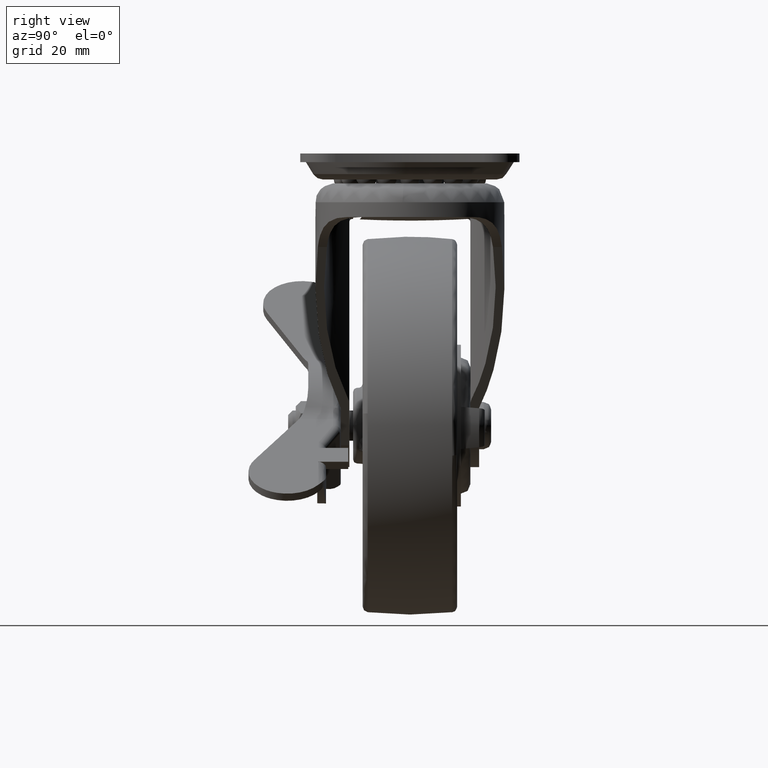
[diagram: clean part render]
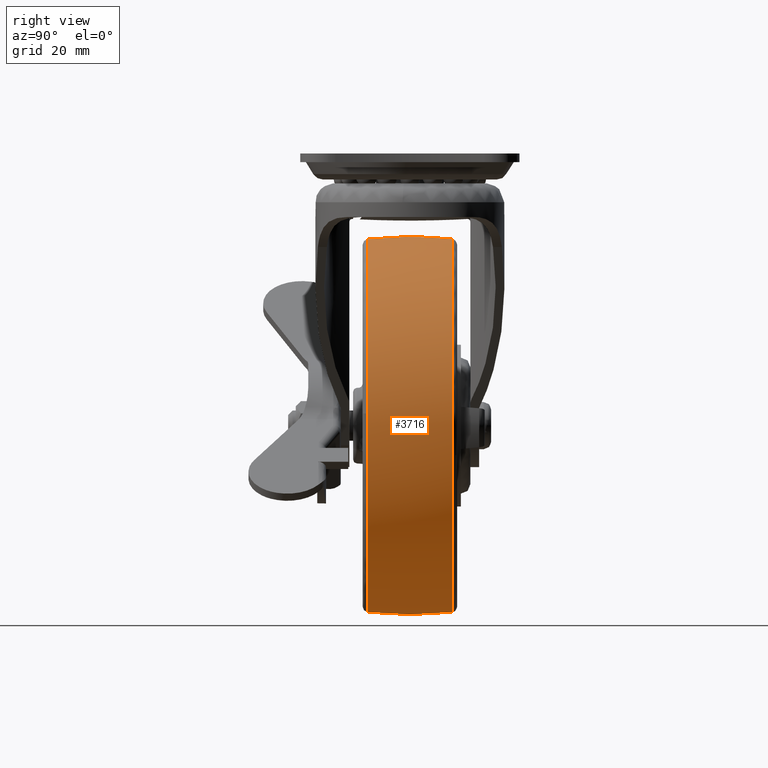
[diagram: same view with one face highlighted and labeled with its STEP entity id]
A machine part, right view. The second image highlights one B-rep face of the part: STEP entity #3716.
In plain terms, the highlighted face is a freeform B-spline surface patch.
Its self-contained STEP definition (entity closure, byte-faithful):
#2634=CARTESIAN_POINT('',(13.453441757027891,-11.167512699821900,-47.506233928361368));
#2635=VERTEX_POINT('',#2634);
#2646=CARTESIAN_POINT('',(49.125186013617871,-11.167497970164780,4.955323172465669));
#2647=VERTEX_POINT('',#2646);
#2648=CARTESIAN_POINT('',(13.453441757027891,-11.167512699821900,-47.506233928361368));
#2649=CARTESIAN_POINT('',(17.251602295345350,-11.167512334913191,-46.431694933010121));
#2650=CARTESIAN_POINT('',(23.002957873926420,-11.167511574656460,-44.025991834927702));
#2651=CARTESIAN_POINT('',(30.729831183755550,-11.167510053415681,-38.920189072931869));
#2652=CARTESIAN_POINT('',(35.830599716736607,-11.167508694089790,-34.218499783919107));
#2653=CARTESIAN_POINT('',(40.088794242363143,-11.167507213981290,-28.998946743348991));
#2654=CARTESIAN_POINT('',(43.157088384774283,-11.167505881164910,-24.239631894673259));
#2655=CARTESIAN_POINT('',(46.010614425336563,-11.167504246532991,-18.332311750766291));
#2656=CARTESIAN_POINT('',(47.870737432981819,-11.167502678681201,-12.598592711098281));
#2657=CARTESIAN_POINT('',(49.405898412243808,-11.167500530241190,-4.663320679447160));
#2658=CARTESIAN_POINT('',(49.531482162625068,-11.167499033220190,0.938862021813099));
#2659=CARTESIAN_POINT('',(49.125186013617871,-11.167497970164780,4.955323172465669));
#2660=B_SPLINE_CURVE_WITH_KNOTS('',3,(#2648,#2649,#2650,#2651,#2652,#2653,#2654,#2655,#2656,#2657,#2658,#2659),.UNSPECIFIED.,.F.,.U.,(4,1,1,1,1,1,1,1,1,4),(0.000000110173062,11.841343672996789,18.569428691790701,27.719579693970179,32.563831003092503,38.753513813613303,44.674232991005908,52.209691314448577,56.784792959455089,68.895259463429525),.UNSPECIFIED.);
#2661=EDGE_CURVE('',#2635,#2647,#2660,.T.);
#2774=CARTESIAN_POINT('',(0.0,-11.167485028069921,49.374496014473692));
#2775=VERTEX_POINT('',#2774);
#2776=CARTESIAN_POINT('',(49.125186013617871,-11.167497970164780,4.955323172465669));
#2777=CARTESIAN_POINT('',(48.784163457511667,-11.167496983687730,8.341057513873032));
#2778=CARTESIAN_POINT('',(47.609514411902410,-11.167495329782810,14.017502433133821));
#2779=CARTESIAN_POINT('',(44.768709009004091,-11.167493252041581,21.148615927221979));
#2780=CARTESIAN_POINT('',(41.266785843042811,-11.167491420539699,27.434599571834131));
#2781=CARTESIAN_POINT('',(36.528187532415423,-11.167489622113459,33.607063166958497));
#2782=CARTESIAN_POINT('',(30.630748600957780,-11.167488059484340,38.970235956840753));
#2783=CARTESIAN_POINT('',(23.922482200627339,-11.167486762666540,43.421105126464333));
#2784=CARTESIAN_POINT('',(16.677420083142749,-11.167485792545859,46.750702521312640));
#2785=CARTESIAN_POINT('',(8.317954870245801,-11.167485163733520,48.908877911124733));
#2786=CARTESIAN_POINT('',(2.741169881524872,-11.167485028007050,49.374712794983523));
#2787=CARTESIAN_POINT('',(0.0,-11.167485028069921,49.374496014473692));
#2788=B_SPLINE_CURVE_WITH_KNOTS('',3,(#2776,#2777,#2778,#2779,#2780,#2781,#2782,#2783,#2784,#2785,#2786,#2787),.UNSPECIFIED.,.F.,.U.,(4,1,1,1,1,1,1,1,1,4),(0.000000124632749,10.208487641787420,17.297712899460588,22.969122856209491,31.759770960216489,40.550307382696133,46.788896930069427,55.863117463162922,64.370196630409822,72.593685615601487),.UNSPECIFIED.);
#2789=EDGE_CURVE('',#2647,#2775,#2788,.T.);
#2791=CARTESIAN_POINT('',(-49.044247291696259,-11.167491605382230,5.700981821739983));
#2792=VERTEX_POINT('',#2791);
#2808=CARTESIAN_POINT('',(0.0,-11.167512887776240,-49.374460883661492));
#2809=VERTEX_POINT('',#2808);
#2810=CARTESIAN_POINT('',(-49.044247291696259,-11.167491605382230,5.700981821739983));
#2811=CARTESIAN_POINT('',(-49.458077728506673,-11.167492291939469,2.146887266101055));
#2812=CARTESIAN_POINT('',(-49.496762012035390,-11.167493506793260,-3.524405453981119));
#2813=CARTESIAN_POINT('',(-48.341804689236888,-11.167495229855270,-10.490823225336451));
#2814=CARTESIAN_POINT('',(-46.896181665812527,-11.167496634503090,-15.720984203590470));
#2815=CARTESIAN_POINT('',(-44.962731448887432,-11.167498074252650,-20.679608257891150));
#2816=CARTESIAN_POINT('',(-42.405038774803437,-11.167499597648860,-25.470465301523159));
#2817=CARTESIAN_POINT('',(-39.298727500544288,-11.167501181291250,-30.052319751800741));
#2818=CARTESIAN_POINT('',(-35.780876975653342,-11.167502748433639,-34.191142187700898));
#2819=CARTESIAN_POINT('',(-31.481043515662218,-11.167504433020740,-38.178552660360268));
#2820=CARTESIAN_POINT('',(-25.786724858823000,-11.167506425415249,-42.352389955149583));
#2821=CARTESIAN_POINT('',(-19.001775203722850,-11.167508478309159,-45.835743873478279));
#2822=CARTESIAN_POINT('',(-9.974811230605136,-11.167510819052760,-48.658206164189622));
#2823=CARTESIAN_POINT('',(-3.794968822983810,-11.167512159630050,-49.375297316795539));
#2824=CARTESIAN_POINT('',(0.0,-11.167512887776240,-49.374460883661492));
#2825=B_SPLINE_CURVE_WITH_KNOTS('',3,(#2810,#2811,#2812,#2813,#2814,#2815,#2816,#2817,#2818,#2819,#2820,#2821,#2822,#2823,#2824),.UNSPECIFIED.,.F.,.U.,(4,1,1,1,1,1,1,1,1,1,1,1,4),(0.000000151294060,10.734137076207990,16.914423557023870,21.143058370067010,26.998062360269639,32.853114766262152,37.407028888038553,43.587134058529983,49.116872722965930,54.971938350166077,64.730278424790527,71.886436113233216,83.271108672757563),.UNSPECIFIED.);
#2826=EDGE_CURVE('',#2792,#2809,#2825,.T.);
#2828=CARTESIAN_POINT('',(0.0,-11.167512887776240,-49.374460883661492));
#2829=CARTESIAN_POINT('',(4.542044248176945,-11.167512887886730,-49.375559167782448));
#2830=CARTESIAN_POINT('',(9.083525785626250,-11.167512824416891,-48.744682164057153));
#2831=CARTESIAN_POINT('',(13.453441757027891,-11.167512699821900,-47.506233928361368));
#2832=B_SPLINE_CURVE_WITH_KNOTS('',3,(#2828,#2829,#2830,#2831),.UNSPECIFIED.,.F.,.U.,(4,4),(2.988475E-009,13.625777978098510),.UNSPECIFIED.);
#2833=EDGE_CURVE('',#2809,#2635,#2832,.T.);
#2862=CARTESIAN_POINT('',(48.985143675084117,11.167491662923680,-6.188246753628677));
#2863=VERTEX_POINT('',#2862);
#2864=CARTESIAN_POINT('',(0.0,11.167464544217721,49.374497440264150));
#2865=VERTEX_POINT('',#2864);
#2866=CARTESIAN_POINT('',(48.985143675084117,11.167491662923680,-6.188246753628677));
#2867=CARTESIAN_POINT('',(49.285991338032687,11.167490504293839,-3.807772200714678));
#2868=CARTESIAN_POINT('',(49.499191538256682,11.167488537296981,0.232721676372286));
#2869=CARTESIAN_POINT('',(49.095362322208452,11.167485725701960,6.006190342601487));
#2870=CARTESIAN_POINT('',(48.045472835186487,11.167482790532150,12.031683599481379));
#2871=CARTESIAN_POINT('',(46.052389022519613,11.167479741584330,18.288262469416651));
#2872=CARTESIAN_POINT('',(42.887919229904732,11.167476581622060,24.769622045764610));
#2873=CARTESIAN_POINT('',(38.811557289329187,11.167473611920780,30.857704499974499));
#2874=CARTESIAN_POINT('',(32.997202147591778,11.167470559491980,37.110911247411650));
#2875=CARTESIAN_POINT('',(26.384990102628169,11.167468172749000,41.994706144968617));
#2876=CARTESIAN_POINT('',(19.188846077461339,11.167466366636740,45.684364335999483));
#2877=CARTESIAN_POINT('',(10.797022654573411,11.167464964606010,48.540815791186169));
#2878=CARTESIAN_POINT('',(4.035464674059152,11.167464549178391,49.375418524881717));
#2879=CARTESIAN_POINT('',(0.0,11.167464544217721,49.374497440264150));
#2880=B_SPLINE_CURVE_WITH_KNOTS('',3,(#2866,#2867,#2868,#2869,#2870,#2871,#2872,#2873,#2874,#2875,#2876,#2877,#2878,#2879),.UNSPECIFIED.,.F.,.U.,(4,1,1,1,1,1,1,1,1,1,1,4),(0.000000161544548,7.198220635472723,12.106208065130019,17.341331018806361,25.521233576839951,31.737998721129259,38.936324960287152,47.443238618966113,57.259137634664441,63.475879286457477,71.655808637872894,83.761983492843299),.UNSPECIFIED.);
#2881=EDGE_CURVE('',#2863,#2865,#2880,.T.);
#2986=CARTESIAN_POINT('',(0.0,11.167512474098420,-49.374459177890202));
#2987=VERTEX_POINT('',#2986);
#2988=CARTESIAN_POINT('',(0.0,11.167512474098420,-49.374459177890202));
#2989=CARTESIAN_POINT('',(2.694302779831196,11.167512478846220,-49.374667157061097));
#2990=CARTESIAN_POINT('',(7.804117390838606,11.167512284660759,-48.955117976370879));
#2991=CARTESIAN_POINT('',(15.048285903121490,11.167511450266611,-47.204806535520632));
#2992=CARTESIAN_POINT('',(21.186812130551850,11.167510270889810,-44.745441244254813));
#2993=CARTESIAN_POINT('',(26.796666424656902,11.167508769207551,-41.621834602514802));
#2994=CARTESIAN_POINT('',(31.379007551464181,11.167507152906010,-38.265001301578600));
#2995=CARTESIAN_POINT('',(35.470058315795448,11.167505323315231,-34.469102078670971));
#2996=CARTESIAN_POINT('',(39.770831797523883,11.167502964260420,-29.578183755088290));
#2997=CARTESIAN_POINT('',(43.204414725912898,11.167500387495300,-24.240402233809789));
#2998=CARTESIAN_POINT('',(45.859206784237422,11.167497615190440,-18.501264993219490));
#2999=CARTESIAN_POINT('',(47.768601298721762,11.167494984718900,-13.057918947683110));
#3000=CARTESIAN_POINT('',(48.659294006681883,11.167492911142240,-8.769169834474118));
#3001=CARTESIAN_POINT('',(48.985143675084117,11.167491662923680,-6.188246753628677));
#3002=B_SPLINE_CURVE_WITH_KNOTS('',3,(#2988,#2989,#2990,#2991,#2992,#2993,#2994,#2995,#2996,#2997,#2998,#2999,#3000,#3001),.UNSPECIFIED.,.F.,.U.,(4,1,1,1,1,1,1,1,1,1,1,4),(0.000000122478170,8.082877200536210,15.329693806470891,22.297743180416720,27.872183690882611,34.561581738805778,39.299745106698339,44.595426592966312,54.072015604197773,58.252864015636561,63.548553339114427,71.352759601323157),.UNSPECIFIED.);
#3003=EDGE_CURVE('',#2987,#2863,#3002,.T.);
#3005=CARTESIAN_POINT('',(-49.044248660978610,11.167471188608850,5.700982325196638));
#3006=VERTEX_POINT('',#3005);
#3007=CARTESIAN_POINT('',(-49.044248660978610,11.167471188608850,5.700982325196638));
#3008=CARTESIAN_POINT('',(-49.257091677739822,11.167471874839331,3.870082615775127));
#3009=CARTESIAN_POINT('',(-49.529441953683872,11.167473676941780,-0.682812877056471));
#3010=CARTESIAN_POINT('',(-48.999741407831742,11.167476685505990,-7.407172496852190));
#3011=CARTESIAN_POINT('',(-47.459892067518638,11.167480047535321,-14.077438739656960));
#3012=CARTESIAN_POINT('',(-45.549862911862817,11.167482932575400,-19.277174561263429));
#3013=CARTESIAN_POINT('',(-43.026635499911080,11.167486033011560,-24.446058197796400));
#3014=CARTESIAN_POINT('',(-39.685896956387687,11.167489458673989,-29.664849359772440));
#3015=CARTESIAN_POINT('',(-35.198970883585631,11.167493292456260,-34.839132627197422));
#3016=CARTESIAN_POINT('',(-29.978133395342439,11.167497155956969,-39.430957159841348));
#3017=CARTESIAN_POINT('',(-24.622500503731299,11.167500626597780,-42.963082081781629));
#3018=CARTESIAN_POINT('',(-18.563521910020391,11.167504109998720,-45.899404184938277));
#3019=CARTESIAN_POINT('',(-13.099455537449330,11.167506908450100,-47.727189473034663));
#3020=CARTESIAN_POINT('',(-6.722304843393345,11.167509834863990,-49.047949588140128));
#3021=CARTESIAN_POINT('',(-2.602205476762469,11.167511505363230,-49.374626168149952));
#3022=CARTESIAN_POINT('',(0.0,11.167512474098420,-49.374459177890202));
#3023=B_SPLINE_CURVE_WITH_KNOTS('',3,(#3007,#3008,#3009,#3010,#3011,#3012,#3013,#3014,#3015,#3016,#3017,#3018,#3019,#3020,#3021,#3022),.UNSPECIFIED.,.F.,.U.,(4,1,1,1,1,1,1,1,1,1,1,1,1,4),(0.000000151436524,5.529709133887579,13.661627445095050,20.167219625082861,26.022229247785230,30.250843011908159,37.407028669805342,44.562959753183407,50.743319380711249,58.224721062799219,63.754447409344863,70.910600443835733,75.464511995974945,83.271108186775308),.UNSPECIFIED.);
#3024=EDGE_CURVE('',#3006,#2987,#3023,.T.);
#3640=CARTESIAN_POINT('',(-48.912141797698162,-12.293386680871293,5.685645083880570));
#3641=CARTESIAN_POINT('',(-49.665582081654208,-6.170093837611956,5.773226241318850));
#3642=CARTESIAN_POINT('',(-49.665582081654193,0.0,5.773226241318849));
#3643=CARTESIAN_POINT('',(-49.665582081654186,6.170090758022482,5.773226241318846));
#3644=CARTESIAN_POINT('',(-48.912142546953007,12.293380591592436,5.685645170975202));
#3645=CARTESIAN_POINT('',(-49.241486505969760,-12.293386680871292,2.852369322545358));
#3646=CARTESIAN_POINT('',(-49.999999999999993,-6.170093837611954,2.896306836182978));
#3647=CARTESIAN_POINT('',(-50.0,0.0,2.896306836182978));
#3648=CARTESIAN_POINT('',(-50.0,6.170090758022481,2.896306836182979));
#3649=CARTESIAN_POINT('',(-49.241487260269615,12.293380591592436,2.852369366238793));
#3650=CARTESIAN_POINT('',(-49.241486505969753,-12.293386680871301,0.000015999999901));
#3651=CARTESIAN_POINT('',(-50.000000000000007,-6.170093837611955,0.000015999999901));
#3652=CARTESIAN_POINT('',(-50.0,0.0,0.000015999999901));
#3653=CARTESIAN_POINT('',(-50.0,6.170090758022482,0.000015999999901));
#3654=CARTESIAN_POINT('',(-49.241487260269629,12.293380591592440,0.000015999999901));
#3655=CARTESIAN_POINT('',(-49.241486505969753,-12.293386680871295,-49.241470505969865));
#3656=CARTESIAN_POINT('',(-49.999999999999993,-6.170093837611955,-49.999984000000111));
#3657=CARTESIAN_POINT('',(-50.0,0.0,-49.999984000000111));
#3658=CARTESIAN_POINT('',(-50.000000000000014,6.170090758022482,-49.999984000000111));
#3659=CARTESIAN_POINT('',(-49.241487260269629,12.293380591592436,-49.241471260269734));
#3660=CARTESIAN_POINT('',(0.0,-12.293386680871301,-49.241470505969872));
#3661=CARTESIAN_POINT('',(0.0,-6.170093837611955,-49.999984000000119));
#3662=CARTESIAN_POINT('',(0.0,0.0,-49.999984000000097));
#3663=CARTESIAN_POINT('',(0.0,6.170090758022482,-49.999984000000111));
#3664=CARTESIAN_POINT('',(0.0,12.293380591592440,-49.241471260269726));
#3665=CARTESIAN_POINT('',(49.241486505969753,-12.293386680871295,-49.241470505969865));
#3666=CARTESIAN_POINT('',(49.999999999999993,-6.170093837611955,-49.999984000000111));
#3667=CARTESIAN_POINT('',(50.0,0.0,-49.999984000000111));
#3668=CARTESIAN_POINT('',(50.000000000000014,6.170090758022482,-49.999984000000111));
#3669=CARTESIAN_POINT('',(49.241487260269629,12.293380591592436,-49.241471260269734));
#3670=CARTESIAN_POINT('',(49.241486505969753,-12.293386680871301,0.000015999999901));
#3671=CARTESIAN_POINT('',(50.000000000000007,-6.170093837611955,0.000015999999901));
#3672=CARTESIAN_POINT('',(50.0,0.0,0.000015999999901));
#3673=CARTESIAN_POINT('',(50.0,6.170090758022482,0.000015999999901));
#3674=CARTESIAN_POINT('',(49.241487260269629,12.293380591592440,0.000015999999901));
#3675=CARTESIAN_POINT('',(49.241486505969753,-12.293386680871295,49.241502505969663));
#3676=CARTESIAN_POINT('',(49.999999999999993,-6.170093837611955,50.000015999999910));
#3677=CARTESIAN_POINT('',(50.0,0.0,50.000015999999910));
#3678=CARTESIAN_POINT('',(50.000000000000014,6.170090758022482,50.000015999999910));
#3679=CARTESIAN_POINT('',(49.241487260269629,12.293380591592436,49.241503260269532));
#3680=CARTESIAN_POINT('',(0.0,-12.293386680871301,49.241502505969656));
#3681=CARTESIAN_POINT('',(0.0,-6.170093837611955,50.000015999999903));
#3682=CARTESIAN_POINT('',(0.0,0.0,50.000015999999903));
#3683=CARTESIAN_POINT('',(0.0,6.170090758022482,50.000015999999903));
#3684=CARTESIAN_POINT('',(0.0,12.293380591592440,49.241503260269539));
#3692=(BOUNDED_SURFACE()B_SPLINE_SURFACE(2,2,((#3640,#3645,#3650,#3655,#3660,#3665,#3670,#3675,#3680),(#3641,#3646,#3651,#3656,#3661,#3666,#3671,#3676,#3681),(#3642,#3647,#3652,#3657,#3662,#3667,#3672,#3677,#3682),(#3643,#3648,#3653,#3658,#3663,#3668,#3673,#3678,#3683),(#3644,#3649,#3654,#3659,#3664,#3669,#3674,#3679,#3684)),.UNSPECIFIED.,.F.,.F.,.U.)B_SPLINE_SURFACE_WITH_KNOTS((3,2,3),(3,2,2,2,3),(0.0,12.496629759044810,24.993253382269739),(0.0,6.627415615382596,89.470128090001623,172.312840564620590,255.155553039239690),.UNSPECIFIED.)GEOMETRIC_REPRESENTATION_ITEM()RATIONAL_B_SPLINE_SURFACE(((0.929539305940074,0.948659223590073,0.971421029411789,0.686898397284292,0.971421029411789,0.686898397284292,0.971421029411789,0.686898397284292,0.971421029411789),(0.941323491873215,0.960685801279188,0.983736168703693,0.695606515788855,0.983736168703693,0.695606515788855,0.983736168703693,0.695606515788855,0.983736168703693),(0.956886126402807,0.976568547383107,1.0,0.707106781186548,1.0,0.707106781186548,1.0,0.707106781186548,1.0),(0.941323499514438,0.960685809077585,0.983736176689201,0.695606521435462,0.983736176689201,0.695606521435462,0.983736176689201,0.695606521435462,0.983736176689201),(0.929539317512098,0.948659235400124,0.971421041505206,0.686898405835630,0.971421041505206,0.686898405835630,0.971421041505206,0.686898405835630,0.971421041505206)))REPRESENTATION_ITEM('')SURFACE());
#3693=ORIENTED_EDGE('',*,*,#2826,.F.);
#3694=CARTESIAN_POINT('',(-49.044247291696259,-11.167491605382230,5.700981821739983));
#3695=CARTESIAN_POINT('',(-49.872770558563261,-3.753623781060077,5.797290885554298));
#3696=CARTESIAN_POINT('',(-49.872613500932232,3.753601649819337,5.797272744631310));
#3697=CARTESIAN_POINT('',(-49.044248660978610,11.167471188608850,5.700982325196638));
#3698=B_SPLINE_CURVE_WITH_KNOTS('',3,(#3694,#3695,#3696,#3697),.UNSPECIFIED.,.F.,.U.,(4,4),(1.916440E-009,22.381660889619582),.UNSPECIFIED.);
#3699=EDGE_CURVE('',#2792,#3006,#3698,.T.);
#3700=ORIENTED_EDGE('',*,*,#3699,.T.);
#3701=ORIENTED_EDGE('',*,*,#3024,.T.);
#3702=ORIENTED_EDGE('',*,*,#3003,.T.);
#3703=ORIENTED_EDGE('',*,*,#2881,.T.);
#3704=CARTESIAN_POINT('',(0.0,-11.167485028069921,49.374496014473692));
#3705=CARTESIAN_POINT('',(0.0,-3.753619791437940,50.208352376897182));
#3706=CARTESIAN_POINT('',(0.0,3.753601134656006,50.208685309727230));
#3707=CARTESIAN_POINT('',(0.0,11.167464544217721,49.374497440264150));
#3708=B_SPLINE_CURVE_WITH_KNOTS('',3,(#3704,#3705,#3706,#3707),.UNSPECIFIED.,.F.,.U.,(4,4),(1.916607E-009,22.381647652631830),.UNSPECIFIED.);
#3709=EDGE_CURVE('',#2775,#2865,#3708,.T.);
#3710=ORIENTED_EDGE('',*,*,#3709,.F.);
#3711=ORIENTED_EDGE('',*,*,#2789,.F.);
#3712=ORIENTED_EDGE('',*,*,#2661,.F.);
#3713=ORIENTED_EDGE('',*,*,#2833,.F.);
#3714=EDGE_LOOP('',(#3693,#3700,#3701,#3702,#3703,#3710,#3711,#3712,#3713));
#3715=FACE_OUTER_BOUND('',#3714,.T.);
#3716=ADVANCED_FACE('',(#3715),#3692,.T.);